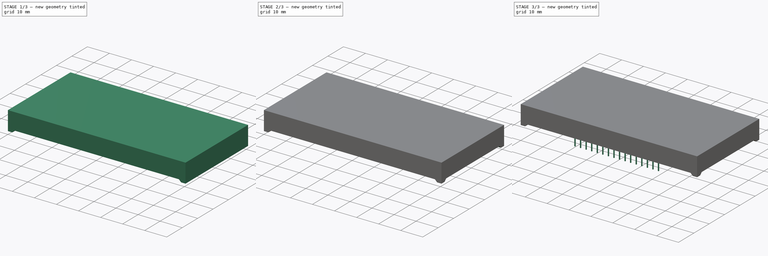
[diagram: build sequence overview — one tinted view per stage of 3, left to right]
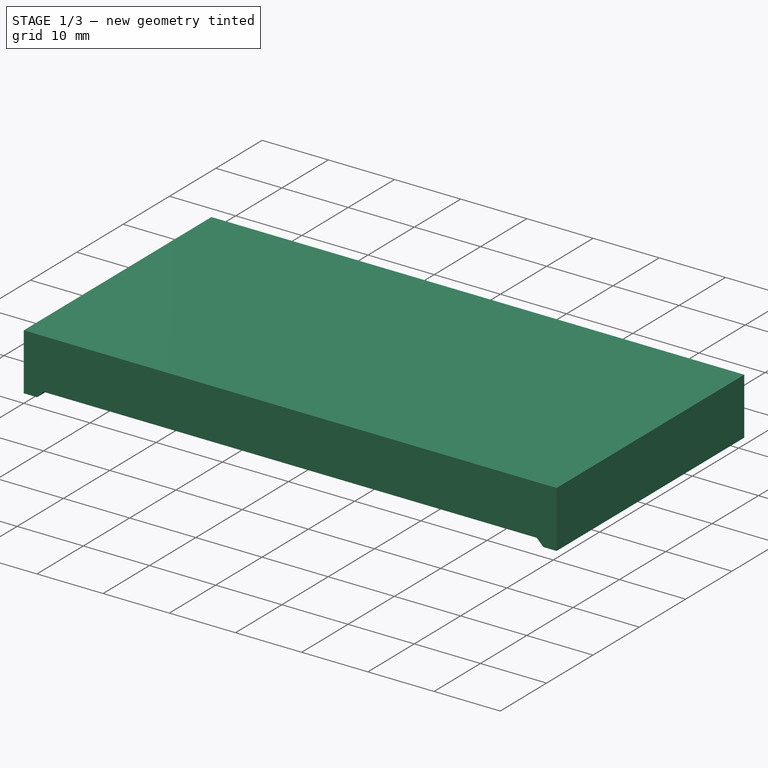
[diagram: stage 1 of 3 — iso view after this stage's code; geometry added in this stage tinted green]
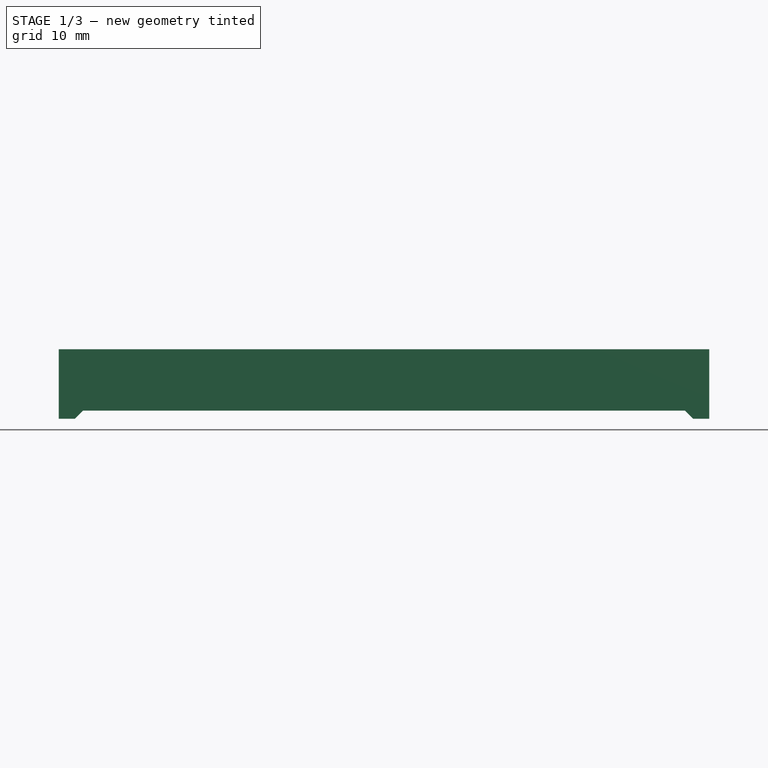
[diagram: stage 1 of 3 — front view after this stage's code; geometry added in this stage tinted green]
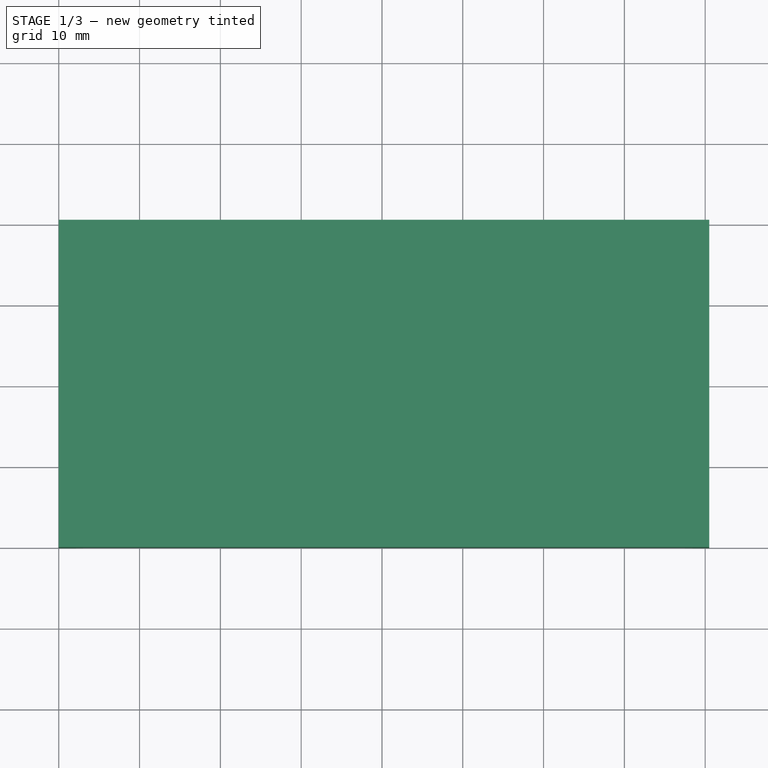
[diagram: stage 1 of 3 — top view after this stage's code; geometry added in this stage tinted green]
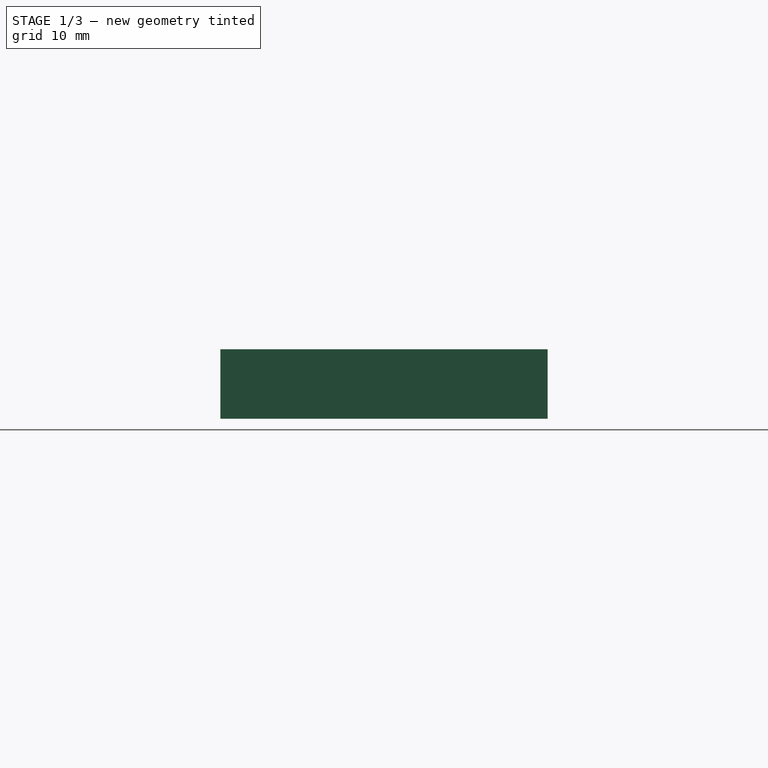
[diagram: stage 1 of 3 — right view after this stage's code; geometry added in this stage tinted green]
FCSTD DOCUMENT  (FreeCAD 1.0R38806 (Git))
Label: OSLB56317_CAD_Model
License: All rights reserved
LicenseURL: http://en.wikipedia.org/wiki/All_rights_reserved
objects: Sketcher::SketchObject×4, PartDesign::Pad×2, PartDesign::Pocket×2, PartDesign::Mirrored×1, PartDesign::Body×1
note: 23 computed .brp shape members not serialized (recipe doc carries the construction recipe); baked Part::Feature solids carry a one-line shape summary decoded from their .brp

FEATURE [Sketcher::SketchObject] Sketch
  ArcFitTolerance = 1e-06
  AttachmentSupport = -> [XY_Plane]
  FullyConstrained = true
  MakeInternals = false
  MapMode = 5
  sketch-geometry (4):
    g0: LineSegment StartX=0 StartY=0 StartZ=0 EndX=80.5 EndY=0 EndZ=0
    g1: LineSegment StartX=80.5 StartY=0 StartZ=0 EndX=80.5 EndY=40.5 EndZ=0
    g2: LineSegment StartX=80.5 StartY=40.5 StartZ=0 EndX=0 EndY=40.5 EndZ=0
    g3: LineSegment StartX=0 StartY=40.5 StartZ=0 EndX=0 EndY=0 EndZ=0
  constraints (11):
    c: Coincident(g0,g1)
    c: Coincident(g1,g2)
    c: Coincident(g2,g3)
    c: Coincident(g3,g0)
    c: Horizontal(g0)
    c: Horizontal(g2)
    c: Vertical(g1)
    c: Vertical(g3)
    c: Coincident(g0,g-1)
    c: DistanceX(g2,g2) = 80.5
    c: DistanceY(g3,g3) = 40.5
FEATURE [PartDesign::Pad] Pad
  Direction = (0,0,1)
  Length = 8.6
  Length2 = 10
  Profile = -> Sketch
  ReferenceAxis = -> Sketch [N_Axis]
  Suppressed = false
  Type = 0
FEATURE [Sketcher::SketchObject] Sketch001
  ArcFitTolerance = 1e-06
  AttachmentSupport = -> [Pad]
  ExternalGeometry = -> [Pad]
  FullyConstrained = true
  MakeInternals = false
  MapMode = 5
  Placement = pos=(0,0,0) rot=(1,0,0;1.5708rad)
  sketch-geometry (6):
    g0: LineSegment StartX=2 StartY=0 StartZ=0 EndX=3 EndY=1 EndZ=0
    g1: LineSegment StartX=3 StartY=1 StartZ=0 EndX=77.5 EndY=1 EndZ=0
    g2: LineSegment StartX=77.5 StartY=1 StartZ=0 EndX=78.5 EndY=0 EndZ=0
    g3: LineSegment StartX=78.5 StartY=0 StartZ=0 EndX=2 EndY=0 EndZ=0
    g4: LineSegment [constr] StartX=2 StartY=0 StartZ=0 EndX=0 EndY=0 EndZ=0
    g5: LineSegment [constr] StartX=78.5 StartY=0 StartZ=0 EndX=80.5 EndY=0 EndZ=0
  constraints (16):
    c: PointOnObject(g0,g-1)
    c: Coincident(g1,g0)
    c: Horizontal(g1)
    c: Coincident(g2,g1)
    c: Coincident(g3,g2)
    c: Horizontal(g3)
    c: Coincident(g4,g0)
    c: Coincident(g4,g-1)
    c: Coincident(g5,g2)
    c: Coincident(g5,g-3)
    c: Equal(g5,g4)
    c: Coincident(g3,g0)
    c: Equal(g0,g2)
    c: DistanceY(g0,g0) = 1
    c: Distance(g4,g4) = 2
    c: DistanceX(g0,g0) = 1
FEATURE [PartDesign::Pocket] Pocket
  BaseFeature = -> Pad
  Direction = (0,1,-2e-16)
  Length = 5
  Length2 = 5
  Profile = -> Sketch001
  ReferenceAxis = -> Sketch001 [N_Axis]
  Suppressed = false
  Type = 1
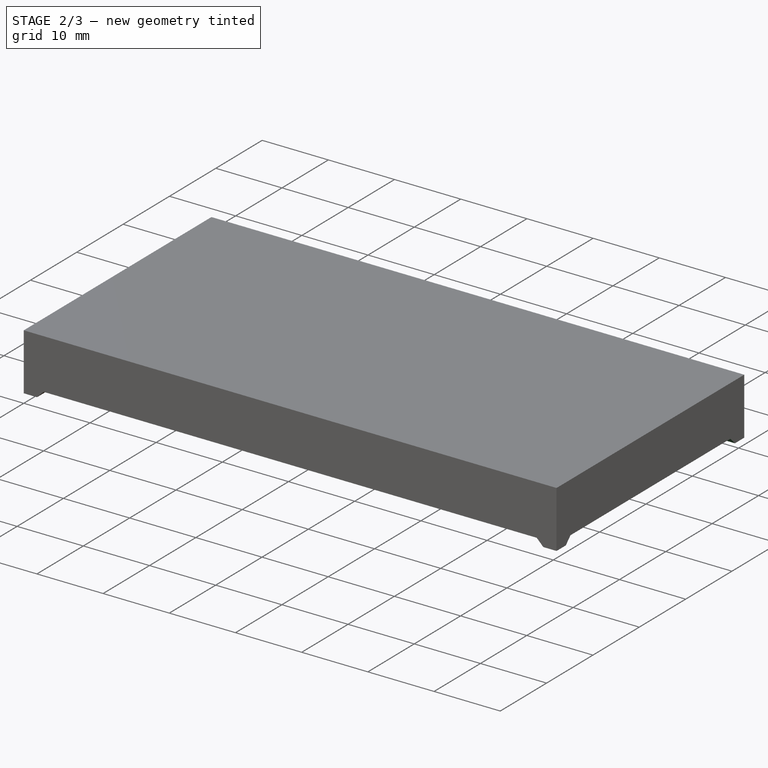
[diagram: stage 2 of 3 — iso view after this stage's code; geometry added in this stage tinted green]
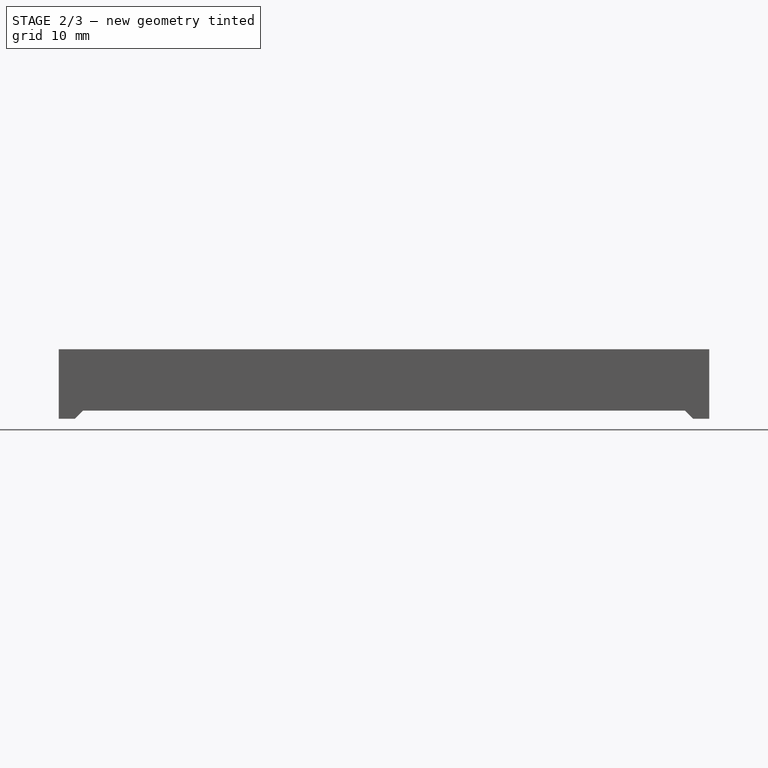
[diagram: stage 2 of 3 — front view after this stage's code; geometry added in this stage tinted green]
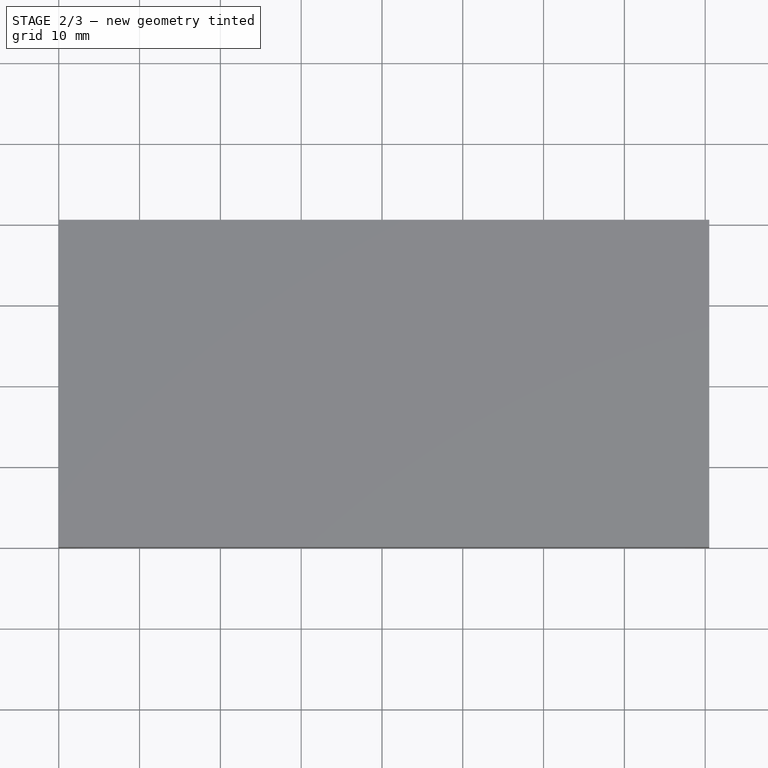
[diagram: stage 2 of 3 — top view after this stage's code; geometry added in this stage tinted green]
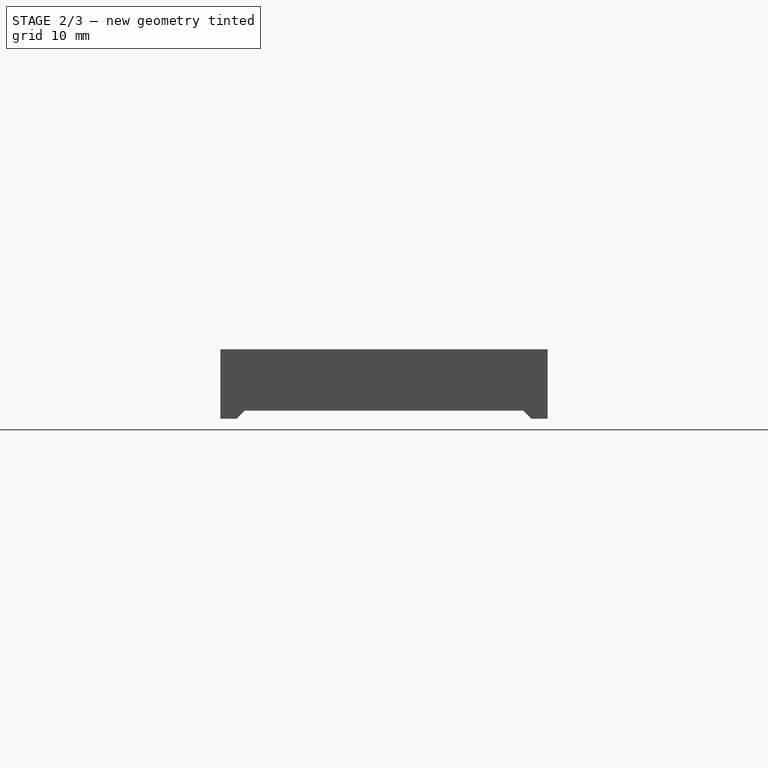
[diagram: stage 2 of 3 — right view after this stage's code; geometry added in this stage tinted green]
FEATURE [Sketcher::SketchObject] Sketch002
  ArcFitTolerance = 1e-06
  AttachmentSupport = -> [Pocket]
  ExternalGeometry = -> [Pocket]
  FullyConstrained = true
  MakeInternals = false
  MapMode = 5
  Placement = pos=(0,0,0) rot=(0.57735,-0.57735,-0.57735;2.0944rad)
  sketch-geometry (6):
    g0: LineSegment [constr] StartX=-40.5 StartY=0 StartZ=0 EndX=-38.5 EndY=0 EndZ=0
    g1: LineSegment [constr] StartX=0 StartY=0 StartZ=0 EndX=-2 EndY=0 EndZ=0
    g2: LineSegment StartX=-38.5 StartY=0 StartZ=0 EndX=-37.5 EndY=1 EndZ=0
    g3: LineSegment StartX=-37.5 StartY=1 StartZ=0 EndX=-3 EndY=1 EndZ=0
    g4: LineSegment StartX=-3 StartY=1 StartZ=0 EndX=-2 EndY=0 EndZ=0
    g5: LineSegment StartX=-2 StartY=0 StartZ=0 EndX=-38.5 EndY=0 EndZ=0
  constraints (16):
    c: Coincident(g0,g-3)
    c: PointOnObject(g0,g-1)
    c: Coincident(g1,g-1)
    c: PointOnObject(g1,g-1)
    c: Coincident(g2,g0)
    c: Coincident(g3,g2)
    c: Horizontal(g3)
    c: Coincident(g4,g3)
    c: Coincident(g4,g1)
    c: Coincident(g5,g1)
    c: Coincident(g5,g0)
    c: Equal(g0,g1)
    c: Equal(g4,g2)
    c: Distance(g1,g1) = 2
    c: DistanceX(g4,g4) = 1
    c: DistanceY(g4,g4) = 1
FEATURE [PartDesign::Pocket] Pocket001
  BaseFeature = -> Pocket
  Direction = (1,0,0)
  Length = 5
  Length2 = 5
  Profile = -> Sketch002
  ReferenceAxis = -> Sketch002 [N_Axis]
  Suppressed = false
  Type = 1
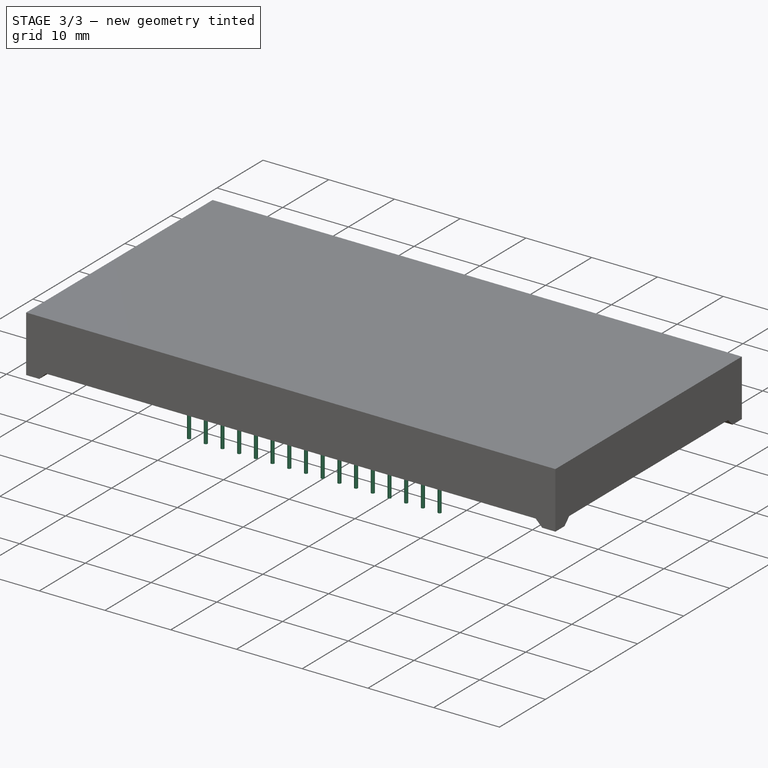
[diagram: stage 3 of 3 — iso view after this stage's code; geometry added in this stage tinted green]
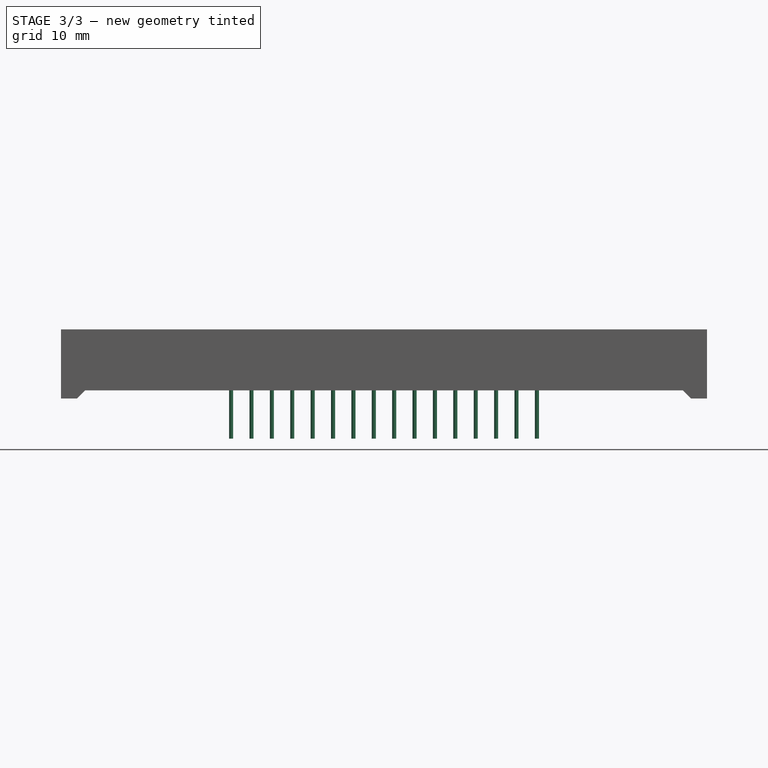
[diagram: stage 3 of 3 — front view after this stage's code; geometry added in this stage tinted green]
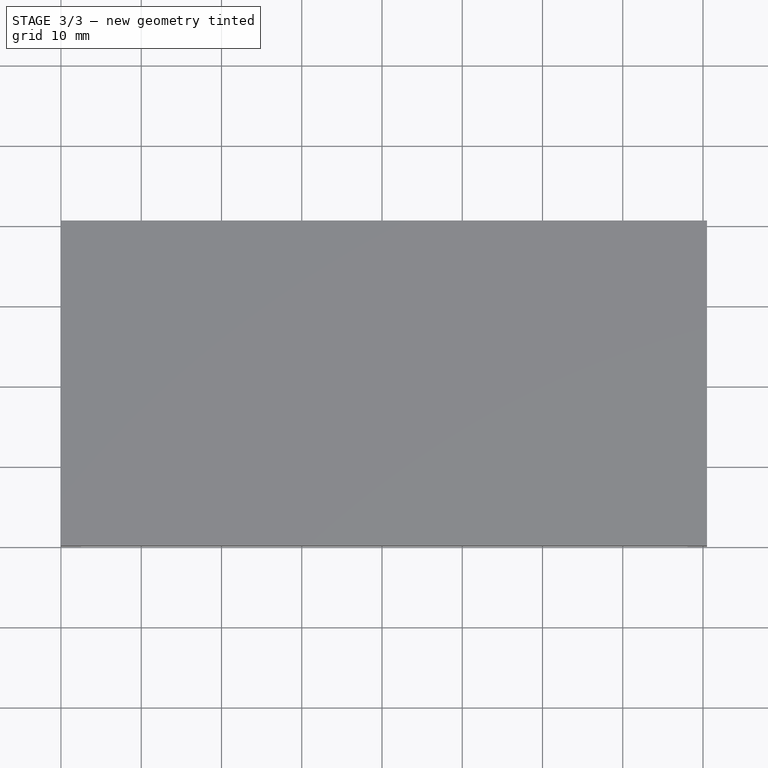
[diagram: stage 3 of 3 — top view after this stage's code; geometry added in this stage tinted green]
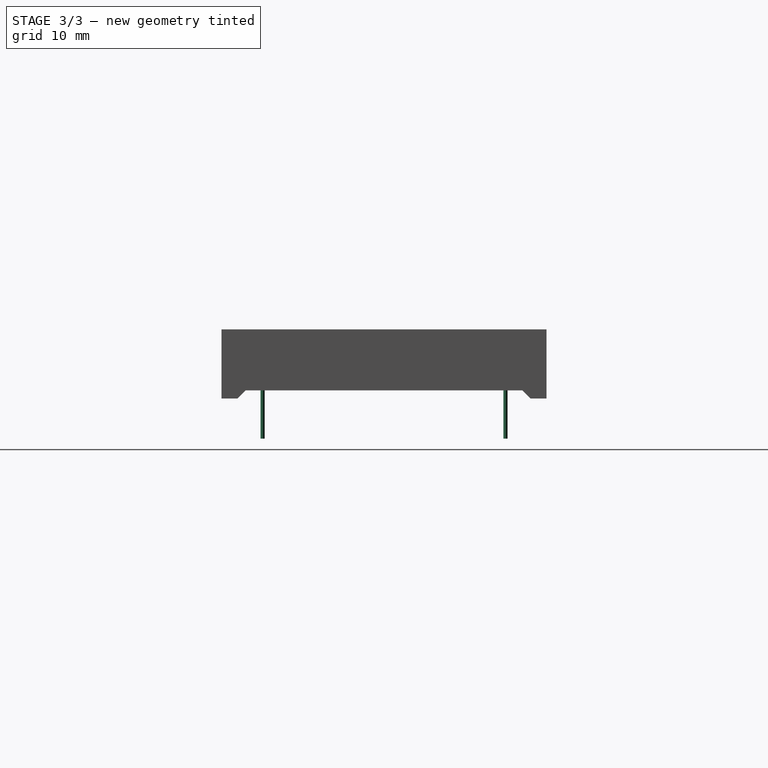
[diagram: stage 3 of 3 — right view after this stage's code; geometry added in this stage tinted green]
FEATURE [Sketcher::SketchObject] Sketch003
  ArcFitTolerance = 1e-06
  AttachmentSupport = -> [Pocket001]
  ExternalGeometry = -> [Pocket001]
  FullyConstrained = true
  MakeInternals = false
  MapMode = 5
  Placement = pos=(0,2e-16,1) rot=(1,0,0;3.14159rad)
  sketch-geometry (36):
    g0: Circle CenterX=21.2 CenterY=-5.12 CenterZ=0 NormalX=0 NormalY=0 NormalZ=1 AngleXU=0 Radius=0.255
    g1: LineSegment [constr] StartX=0 StartY=0 StartZ=0 EndX=21.2 EndY=-5.12 EndZ=0
    g2: LineSegment [constr] StartX=80.5 StartY=0 StartZ=0 EndX=59.3 EndY=-5.12 EndZ=0
    g3: Circle CenterX=59.3 CenterY=-5.12 CenterZ=0 NormalX=0 NormalY=0 NormalZ=1 AngleXU=0 Radius=0.255
    g4: Circle CenterX=23.74 CenterY=-5.12 CenterZ=0 NormalX=0 NormalY=0 NormalZ=1 AngleXU=0 Radius=0.255
    g5: Circle CenterX=26.28 CenterY=-5.12 CenterZ=0 NormalX=0 NormalY=0 NormalZ=1 AngleXU=0 Radius=0.255
    g6: Circle CenterX=28.82 CenterY=-5.12 CenterZ=0 NormalX=0 NormalY=0 NormalZ=1 AngleXU=0 Radius=0.255
    g7: Circle CenterX=31.36 CenterY=-5.12 CenterZ=0 NormalX=0 NormalY=0 NormalZ=1 AngleXU=0 Radius=0.255
    g8: Circle CenterX=33.9 CenterY=-5.12 CenterZ=0 NormalX=0 NormalY=0 NormalZ=1 AngleXU=0 Radius=0.255
    g9: Circle CenterX=36.44 CenterY=-5.12 CenterZ=0 NormalX=0 NormalY=0 NormalZ=1 AngleXU=0 Radius=0.255
    g10: Circle CenterX=38.98 CenterY=-5.12 CenterZ=0 NormalX=0 NormalY=0 NormalZ=1 AngleXU=0 Radius=0.255
    g11: Circle CenterX=41.52 CenterY=-5.12 CenterZ=0 NormalX=0 NormalY=0 NormalZ=1 AngleXU=0 Radius=0.255
    g12: Circle CenterX=44.06 CenterY=-5.12 CenterZ=0 NormalX=0 NormalY=0 NormalZ=1 AngleXU=0 Radius=0.255
    g13: Circle CenterX=46.6 CenterY=-5.12 CenterZ=0 NormalX=0 NormalY=0 NormalZ=1 AngleXU=0 Radius=0.255
    g14: Circle CenterX=49.14 CenterY=-5.12 CenterZ=0 NormalX=0 NormalY=0 NormalZ=1 AngleXU=0 Radius=0.255
    g15: Circle CenterX=51.68 CenterY=-5.12 CenterZ=0 NormalX=0 NormalY=0 NormalZ=1 AngleXU=0 Radius=0.255
    g16: Circle CenterX=54.22 CenterY=-5.12 CenterZ=0 NormalX=0 NormalY=0 NormalZ=1 AngleXU=0 Radius=0.255
    g17: Circle CenterX=56.76 CenterY=-5.12 CenterZ=0 NormalX=0 NormalY=0 NormalZ=1 AngleXU=0 Radius=0.255
    g18: LineSegment [constr] StartX=21.2 StartY=-5.12 StartZ=0 EndX=23.74 EndY=-5.12 EndZ=0
    g19: LineSegment [constr] StartX=23.74 StartY=-5.12 StartZ=0 EndX=26.28 EndY=-5.12 EndZ=0
    g20: LineSegment [constr] StartX=26.28 StartY=-5.12 StartZ=0 EndX=28.82 EndY=-5.12 EndZ=0
    g21: LineSegment [constr] StartX=28.82 StartY=-5.12 StartZ=0 EndX=31.36 EndY=-5.12 EndZ=0
    g22: LineSegment [constr] StartX=31.36 StartY=-5.12 StartZ=0 EndX=33.9 EndY=-5.12 EndZ=0
    g23: LineSegment [constr] StartX=33.9 StartY=-5.12 StartZ=0 EndX=36.44 EndY=-5.12 EndZ=0
    g24: LineSegment [constr] StartX=36.44 StartY=-5.12 StartZ=0 EndX=38.98 EndY=-5.12 EndZ=0
    g25: LineSegment [constr] StartX=38.98 StartY=-5.12 StartZ=0 EndX=41.52 EndY=-5.12 EndZ=0
    g26: LineSegment [constr] StartX=41.52 StartY=-5.12 StartZ=0 EndX=44.06 EndY=-5.12 EndZ=0
    g27: LineSegment [constr] StartX=44.06 StartY=-5.12 StartZ=0 EndX=46.6 EndY=-5.12 EndZ=0
    g28: LineSegment [constr] StartX=46.6 StartY=-5.12 StartZ=0 EndX=49.14 EndY=-5.12 EndZ=0
    g29: LineSegment [constr] StartX=49.14 StartY=-5.12 StartZ=0 EndX=51.68 EndY=-5.12 EndZ=0
    g30: LineSegment [constr] StartX=51.68 StartY=-5.12 StartZ=0 EndX=54.22 EndY=-5.12 EndZ=0
    g31: LineSegment [constr] StartX=54.22 StartY=-5.12 StartZ=0 EndX=56.76 EndY=-5.12 EndZ=0
    g32: LineSegment [constr] StartX=56.76 StartY=-5.12 StartZ=0 EndX=59.3 EndY=-5.12 EndZ=0
    g33: LineSegment [constr] StartX=0 StartY=-20.25 StartZ=0 EndX=80.5 EndY=-20.25 EndZ=0
    g34: LineSegment [constr] StartX=80.5 StartY=-20.25 StartZ=0 EndX=80.5 EndY=0 EndZ=0
    g35: LineSegment [constr] StartX=80.5 StartY=-20.25 StartZ=0 EndX=80.5 EndY=-40.5 EndZ=0
  constraints (90):
    c: Diameter(g0) = 0.51
    c: Coincident(g1,g-1)
    c: Coincident(g1,g0)
    c: Coincident(g2,g-4)
    c: Coincident(g3,g2)
    c: Equal(g0,g4)
    c: Equal(g4,g5)
    c: Equal(g5,g6)
    c: Equal(g6,g7)
    c: Equal(g7,g8)
    c: Equal(g8,g9)
    c: Equal(g9,g10)
    c: Equal(g10,g11)
    c: Equal(g11,g12)
    c: Equal(g12,g13)
    c: Equal(g13,g14)
    c: Equal(g14,g15)
    c: Equal(g15,g16)
    c: Equal(g16,g17)
    c: Equal(g17,g3)
    c: Coincident(g18,g0)
    c: Coincident(g18,g4)
    c: Horizontal(g18)
    c: Coincident(g19,g4)
    c: Coincident(g19,g5)
    c: Coincident(g20,g5)
    c: Coincident(g20,g6)
    c: Coincident(g21,g6)
    c: Coincident(g21,g7)
    c: Coincident(g22,g7)
    c: Coincident(g22,g8)
    c: Horizontal(g22)
    c: Coincident(g23,g8)
    c: Coincident(g23,g9)
    c: Coincident(g24,g9)
    c: Coincident(g24,g10)
    c: Horizontal(g24)
    c: Coincident(g25,g10)
    c: Coincident(g25,g11)
    c: Coincident(g26,g11)
    c: Coincident(g26,g12)
    c: Horizontal(g26)
    c: Coincident(g27,g12)
    c: Coincident(g27,g13)
    c: Horizontal(g27)
    c: Coincident(g28,g13)
    c: Coincident(g28,g14)
    c: Horizontal(g28)
    c: Coincident(g29,g14)
    c: Coincident(g29,g15)
    c: Coincident(g30,g15)
    c: Coincident(g30,g16)
    c: Horizontal(g30)
    c: Coincident(g31,g16)
    c: Coincident(g31,g17)
    c: Coincident(g32,g17)
    c: Coincident(g32,g2)
    c: Horizontal(g32)
    c: Equal(g26,g25)
    c: Equal(g25,g24)
    c: Equal(g24,g23)
    c: Equal(g23,g22)
    c: Equal(g22,g21)
    c: Equal(g21,g20)
    c: Equal(g20,g19)
    c: Equal(g19,g18)
    c: Equal(g18,g27)
    c: Equal(g27,g28)
    c: Equal(g28,g29)
    c: Equal(g29,g30)
    c: Equal(g30,g31)
    c: Equal(g31,g32)
    c: Horizontal(g21)
    c: Horizontal(g20)
    c: Horizontal(g19)
    c: Horizontal(g25)
    c: Horizontal(g23)
    c: Horizontal(g31)
    c: Horizontal(g29)
    c: Distance(g18,g18) = 2.54
    c: DistanceY(g1,g1) = 5.12
    c: Equal(g2,g1)
    c: PointOnObject(g33,g-2)
    c: Horizontal(g33)
    c: Coincident(g34,g33)
    c: Coincident(g34,g2)
    c: Vertical(g34)
    c: Coincident(g35,g33)
    c: Coincident(g35,g-3)
    c: Equal(g35,g34)
FEATURE [PartDesign::Pad] Pad001
  BaseFeature = -> Pocket001
  Direction = (0,0,-1)
  Length = 6
  Length2 = 10
  Profile = -> Sketch003
  ReferenceAxis = -> Sketch003 [N_Axis]
  Suppressed = false
  Type = 0
FEATURE [PartDesign::Mirrored] Mirrored
  BaseFeature = -> Pad001
  MirrorPlane = -> Sketch003 [Axis17]
  Originals = -> [Pad001]
  Suppressed = false
  TransformMode = 0
FEATURE [PartDesign::Body] Body
  AllowCompound = false
  Group = -> [Sketch,Pad,Sketch001,Pocket,Sketch002,Pocket001,Sketch003,Pad001,Mirrored]
  Origin = -> Origin
  Tip = -> Mirrored
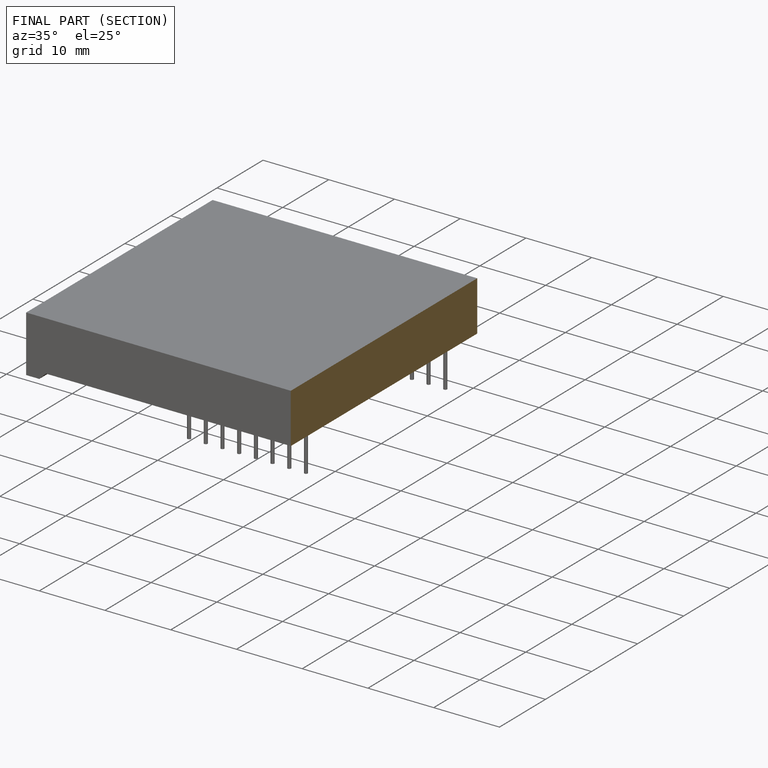
[diagram: finished part — half-section view (interior)]
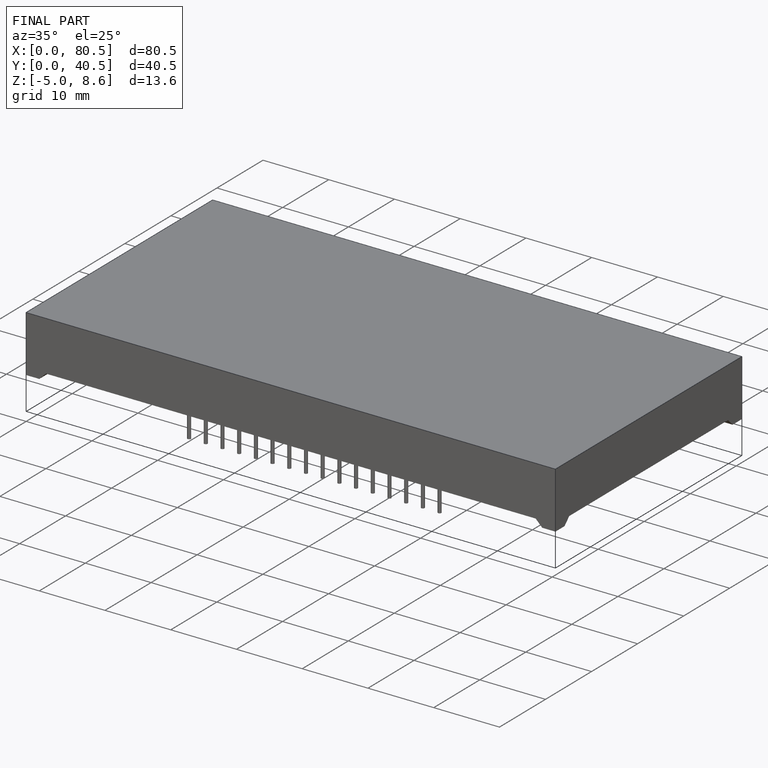
[diagram: finished part — iso view with bounding-box wireframe]
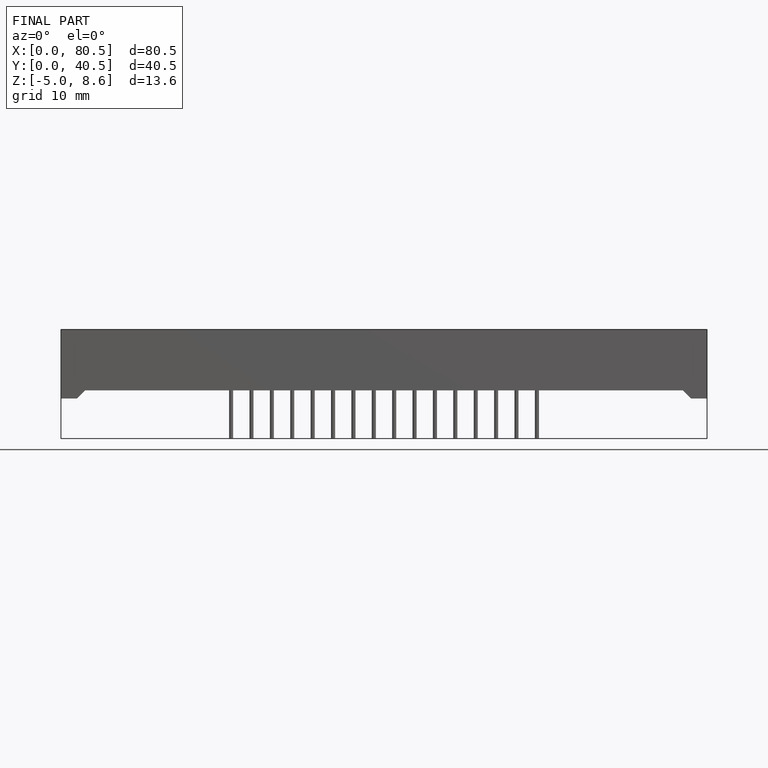
[diagram: finished part — front view with bounding-box wireframe]
